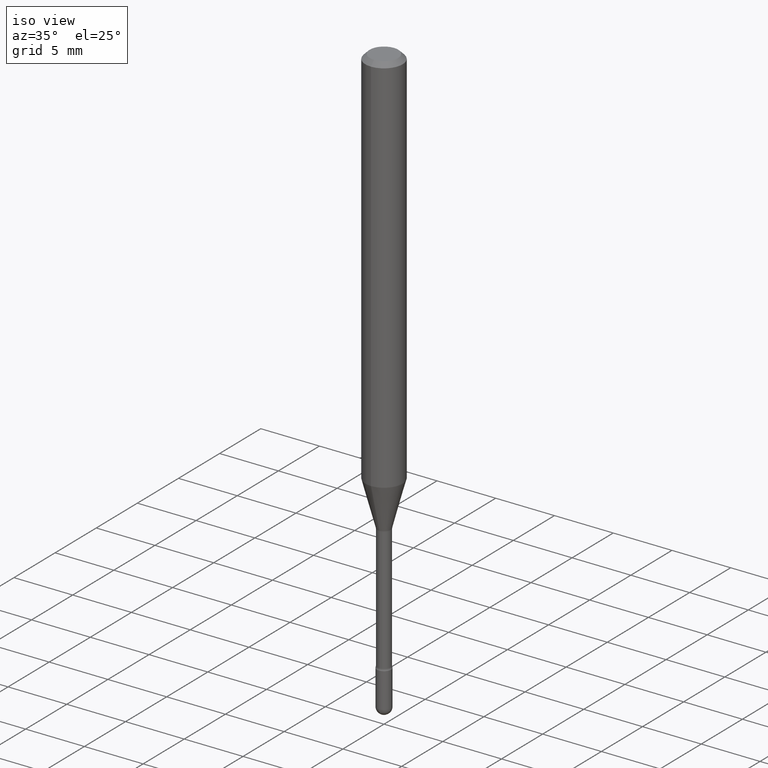
[diagram: clean part render]
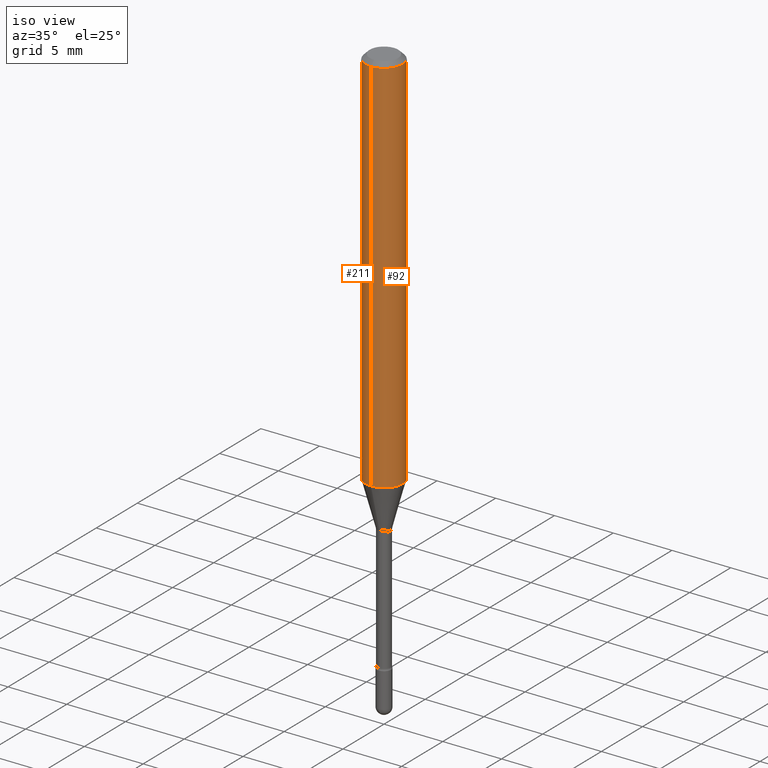
[diagram: same view with one multi-face feature highlighted, each face labeled with its STEP entity id]
A machine part, iso view. The highlighted faces form ONE feature: a constant-radius fillet chain: 2 tangent blend faces with common blend radius 1.5875 mm. The faces share edges in the B-rep.
Their STEP definitions:
[1] entity #211 (Cylinder):
#6 = CARTESIAN_POINT ( 'NONE',  ( 4.440892098500937762E-16, 0.06249999999999548278, -1.285225147374218224 ) ) ;
#12 = CARTESIAN_POINT ( 'NONE',  ( -4.364351673553603615E-16, -0.06250000000000451028, -1.285225147374217780 ) ) ;
#30 = LINE ( 'NONE', #380, #127 ) ;
#39 = CYLINDRICAL_SURFACE ( 'NONE', #406, 0.06250000000000000000 ) ;
#54 = AXIS2_PLACEMENT_3D ( 'NONE', #275, #464, #277 ) ;
#84 = CARTESIAN_POINT ( 'NONE',  ( 4.440892098500625669E-16, 0.06250000000000000000, 2.598545022940337917E-16 ) ) ;
#113 = EDGE_LOOP ( 'NONE', ( #286, #159, #288, #333 ) ) ;
#123 = DIRECTION ( 'NONE',  ( -2.445454137276373671E-29, 3.491502345555396345E-15, 1.000000000000000000 ) ) ;
#127 = VECTOR ( 'NONE', #322, 39.37007874015748143 ) ;
#135 = VECTOR ( 'NONE', #164, 39.37007874015748143 ) ;
#159 = ORIENTED_EDGE ( 'NONE', *, *, #282, .T. ) ;
#160 = DIRECTION ( 'NONE',  ( -2.445454137276373671E-29, 3.491502345555396345E-15, 1.000000000000000000 ) ) ;
#161 = VERTEX_POINT ( 'NONE', #340 ) ;
#164 = DIRECTION ( 'NONE',  ( -2.445454137276373671E-29, 3.491502345555396345E-15, 1.000000000000000000 ) ) ;
#165 = VERTEX_POINT ( 'NONE', #300 ) ;
#167 = CARTESIAN_POINT ( 'NONE',  ( -1.169113584055446105E-44, 1.669184350826100908E-30, 4.780733988912460139E-16 ) ) ;
#169 = LINE ( 'NONE', #84, #135 ) ;
#187 = EDGE_CURVE ( 'NONE', #504, #161, #169, .T. ) ;
#211 = ADVANCED_FACE ( 'NONE', ( #564 ), #39, .T. ) ;
#213 = AXIS2_PLACEMENT_3D ( 'NONE', #349, #123, #434 ) ;
#218 = DIRECTION ( 'NONE',  ( -6.982962677686265922E-15, -1.000000000000000000, 3.491502345555397133E-15 ) ) ;
#240 = CIRCLE ( 'NONE', #213, 0.06250000000000000000 ) ;
#275 = CARTESIAN_POINT ( 'NONE',  ( 3.668181205914580563E-31, -5.237253518333123803E-17, -0.01500000000000008271 ) ) ;
#277 = DIRECTION ( 'NONE',  ( -6.982962677686265922E-15, -1.000000000000000000, 3.483106191921935554E-15 ) ) ;
#282 = EDGE_CURVE ( 'NONE', #504, #346, #240, .T. ) ;
#286 = ORIENTED_EDGE ( 'NONE', *, *, #187, .F. ) ;
#288 = ORIENTED_EDGE ( 'NONE', *, *, #563, .T. ) ;
#289 = CIRCLE ( 'NONE', #54, 0.06250000000000000000 ) ;
#300 = CARTESIAN_POINT ( 'NONE',  ( -4.364351673553912750E-16, -0.06250000000000005551, -0.01499999999999986587 ) ) ;
#322 = DIRECTION ( 'NONE',  ( -2.445454137276373671E-29, 3.491502345555396345E-15, 1.000000000000000000 ) ) ;
#333 = ORIENTED_EDGE ( 'NONE', *, *, #533, .F. ) ;
#340 = CARTESIAN_POINT ( 'NONE',  ( 4.440892098500941706E-16, 0.06249999999999995143, -0.01500000000000030129 ) ) ;
#346 = VERTEX_POINT ( 'NONE', #12 ) ;
#349 = CARTESIAN_POINT ( 'NONE',  ( 3.142959153977918032E-29, -4.487366616623861498E-15, -1.285225147374218002 ) ) ;
#380 = CARTESIAN_POINT ( 'NONE',  ( -4.364351673553916201E-16, -0.06250000000000000000, 6.962922954884584334E-16 ) ) ;
#406 = AXIS2_PLACEMENT_3D ( 'NONE', #167, #160, #218 ) ;
#434 = DIRECTION ( 'NONE',  ( -6.982962677686265922E-15, -1.000000000000000000, 4.370956789862821150E-15 ) ) ;
#464 = DIRECTION ( 'NONE',  ( -2.445454137276373671E-29, 3.491502345555396345E-15, 1.000000000000000000 ) ) ;
#504 = VERTEX_POINT ( 'NONE', #6 ) ;
#533 = EDGE_CURVE ( 'NONE', #161, #165, #289, .T. ) ;
#563 = EDGE_CURVE ( 'NONE', #346, #165, #30, .T. ) ;
#564 = FACE_OUTER_BOUND ( 'NONE', #113, .T. ) ;
[2] entity #92 (Cylinder):
#4 = CARTESIAN_POINT ( 'NONE',  ( -1.169113584055446105E-44, 1.669184350826100908E-30, 4.780733988912460139E-16 ) ) ;
#6 = CARTESIAN_POINT ( 'NONE',  ( 4.440892098500937762E-16, 0.06249999999999548278, -1.285225147374218224 ) ) ;
#12 = CARTESIAN_POINT ( 'NONE',  ( -4.364351673553603615E-16, -0.06250000000000451028, -1.285225147374217780 ) ) ;
#19 = EDGE_CURVE ( 'NONE', #165, #161, #88, .T. ) ;
#30 = LINE ( 'NONE', #380, #127 ) ;
#34 = CARTESIAN_POINT ( 'NONE',  ( 3.668181205914580563E-31, -5.237253518333123803E-17, -0.01500000000000008271 ) ) ;
#53 = AXIS2_PLACEMENT_3D ( 'NONE', #34, #562, #75 ) ;
#75 = DIRECTION ( 'NONE',  ( -6.982962677686265922E-15, -1.000000000000000000, 3.483106191921935554E-15 ) ) ;
#84 = CARTESIAN_POINT ( 'NONE',  ( 4.440892098500625669E-16, 0.06250000000000000000, 2.598545022940337917E-16 ) ) ;
#88 = CIRCLE ( 'NONE', #53, 0.06250000000000000000 ) ;
#92 = ADVANCED_FACE ( 'NONE', ( #487 ), #492, .T. ) ;
#127 = VECTOR ( 'NONE', #322, 39.37007874015748143 ) ;
#135 = VECTOR ( 'NONE', #164, 39.37007874015748143 ) ;
#148 = ORIENTED_EDGE ( 'NONE', *, *, #237, .T. ) ;
#161 = VERTEX_POINT ( 'NONE', #340 ) ;
#164 = DIRECTION ( 'NONE',  ( -2.445454137276373671E-29, 3.491502345555396345E-15, 1.000000000000000000 ) ) ;
#165 = VERTEX_POINT ( 'NONE', #300 ) ;
#169 = LINE ( 'NONE', #84, #135 ) ;
#171 = CARTESIAN_POINT ( 'NONE',  ( 3.142959153977918032E-29, -4.487366616623861498E-15, -1.285225147374218002 ) ) ;
#187 = EDGE_CURVE ( 'NONE', #504, #161, #169, .T. ) ;
#212 = AXIS2_PLACEMENT_3D ( 'NONE', #4, #395, #403 ) ;
#237 = EDGE_CURVE ( 'NONE', #346, #504, #397, .T. ) ;
#300 = CARTESIAN_POINT ( 'NONE',  ( -4.364351673553912750E-16, -0.06250000000000005551, -0.01499999999999986587 ) ) ;
#322 = DIRECTION ( 'NONE',  ( -2.445454137276373671E-29, 3.491502345555396345E-15, 1.000000000000000000 ) ) ;
#340 = CARTESIAN_POINT ( 'NONE',  ( 4.440892098500941706E-16, 0.06249999999999995143, -0.01500000000000030129 ) ) ;
#343 = EDGE_LOOP ( 'NONE', ( #148, #462, #389, #552 ) ) ;
#346 = VERTEX_POINT ( 'NONE', #12 ) ;
#380 = CARTESIAN_POINT ( 'NONE',  ( -4.364351673553916201E-16, -0.06250000000000000000, 6.962922954884584334E-16 ) ) ;
#389 = ORIENTED_EDGE ( 'NONE', *, *, #19, .F. ) ;
#395 = DIRECTION ( 'NONE',  ( -2.445454137276373671E-29, 3.491502345555396345E-15, 1.000000000000000000 ) ) ;
#397 = CIRCLE ( 'NONE', #458, 0.06250000000000000000 ) ;
#403 = DIRECTION ( 'NONE',  ( -6.982962677686265922E-15, -1.000000000000000000, 3.491502345555397133E-15 ) ) ;
#458 = AXIS2_PLACEMENT_3D ( 'NONE', #171, #559, #475 ) ;
#462 = ORIENTED_EDGE ( 'NONE', *, *, #187, .T. ) ;
#475 = DIRECTION ( 'NONE',  ( -6.982962677686265922E-15, -1.000000000000000000, 4.370956789862821150E-15 ) ) ;
#487 = FACE_OUTER_BOUND ( 'NONE', #343, .T. ) ;
#492 = CYLINDRICAL_SURFACE ( 'NONE', #212, 0.06250000000000000000 ) ;
#504 = VERTEX_POINT ( 'NONE', #6 ) ;
#552 = ORIENTED_EDGE ( 'NONE', *, *, #563, .F. ) ;
#559 = DIRECTION ( 'NONE',  ( -2.445454137276373671E-29, 3.491502345555396345E-15, 1.000000000000000000 ) ) ;
#562 = DIRECTION ( 'NONE',  ( -2.445454137276373671E-29, 3.491502345555396345E-15, 1.000000000000000000 ) ) ;
#563 = EDGE_CURVE ( 'NONE', #346, #165, #30, .T. ) ;